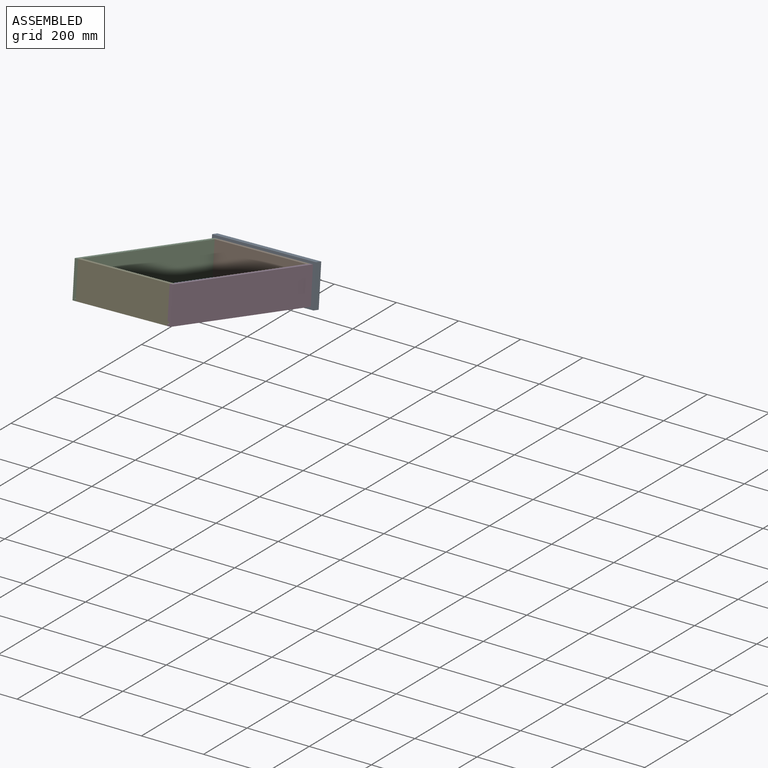
[diagram: assembled view]
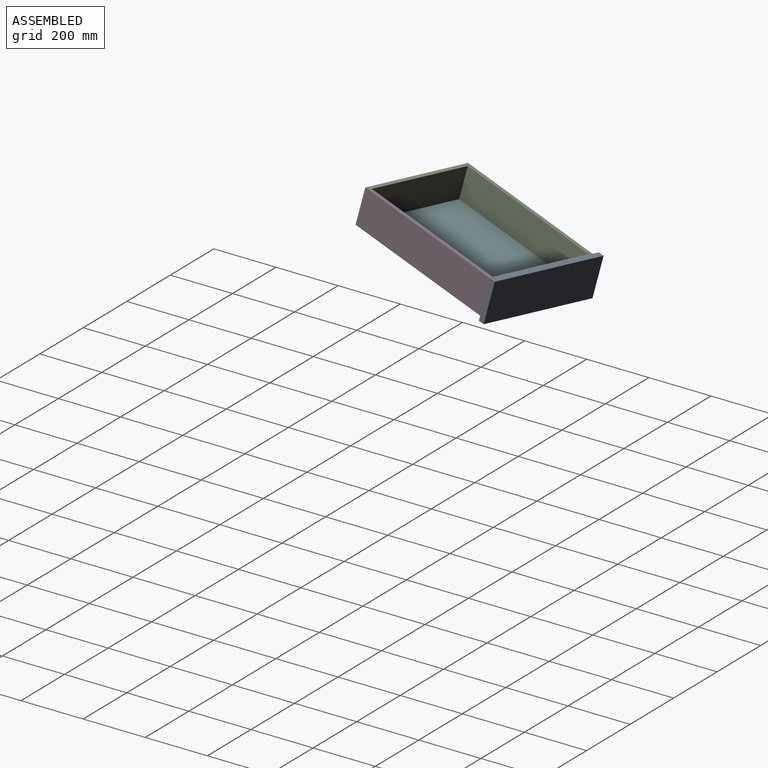
[diagram: assembled view, second angle]
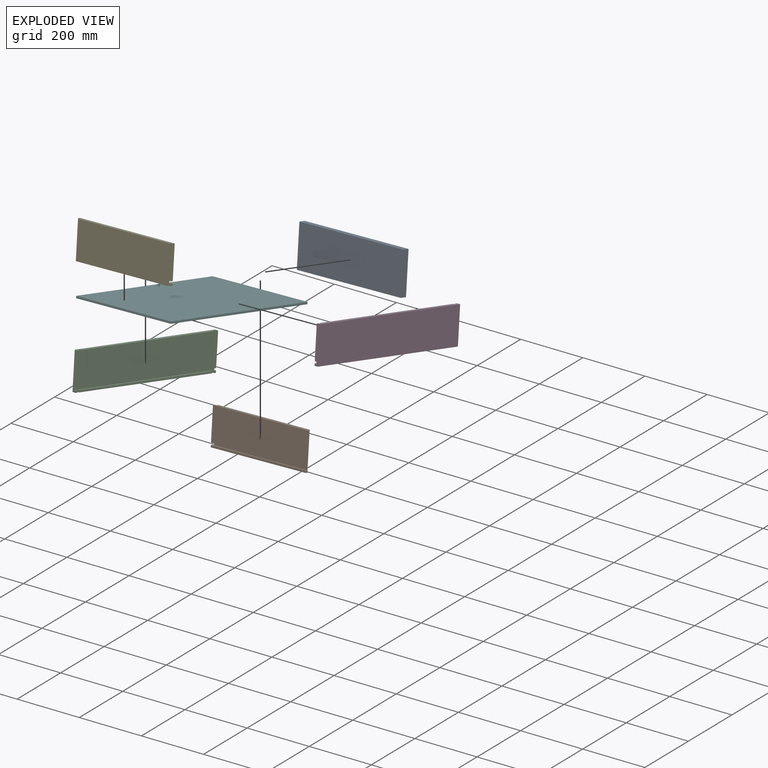
[diagram: exploded view]
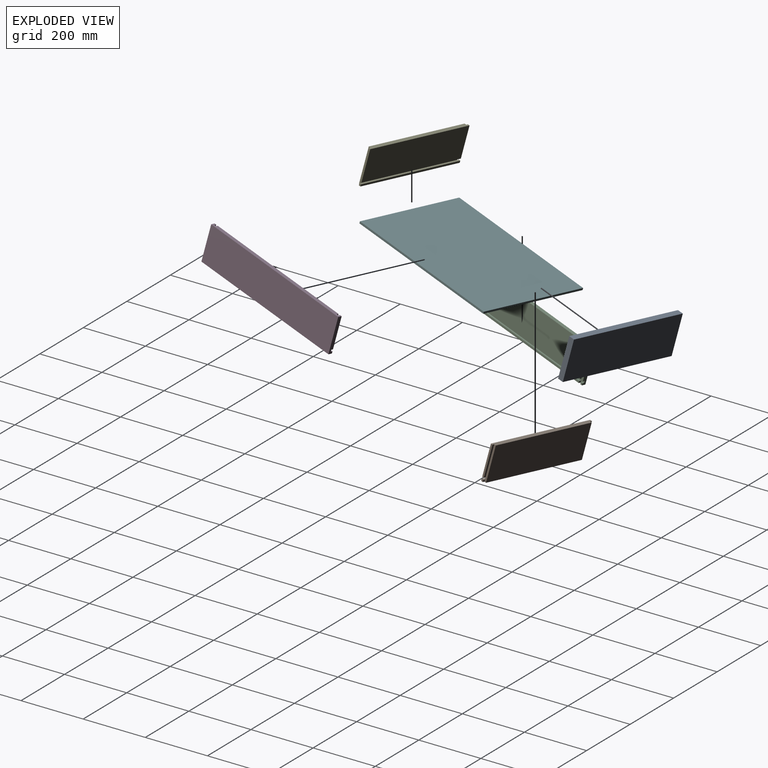
[diagram: exploded view, second angle]
ASSEMBLY  parts=6 mates=5
PART A: 6 faces, bbox 130.2x19.1x400.1 mm
  f0: plane 400.05x19.05mm, normal (-1,0,0), area 7621mm2, adj f1,f2,f3,f4
  f1: plane 130.18x19.05mm, normal (0,0,-1), area 2479.8mm2, adj f0,f2,f4,f5
  f2: plane 400.05x130.18mm, normal (0,1,0), area 52076.5mm2, adj f0,f1,f3,f5
  f3: plane 130.18x19.05mm, normal (0,0,1), area 2479.8mm2, adj f0,f2,f4,f5
  f4: plane 400.05x130.18mm, normal (0,-1,0), area 52076.5mm2, adj f0,f1,f3,f5
  f5: plane 400.05x19.05mm, normal (1,0,0), area 7621mm2, adj f1,f2,f3,f4
PART B: 18 faces, bbox 114.3x12.7x365.1 mm
  f0: plane 365.13x6.35mm, normal (0,1,0), area 2318.5mm2, adj f1,f3,f4,f6
  f1: plane 6.35x6.35mm, normal (0,0,1), area 40.3mm2, adj f0,f2,f4,f6
  f2: plane 6.35x6.35mm, normal (0,-1,0), area 40.3mm2, adj f1,f4,f5,f6
  f3: plane 6.35x6.35mm, normal (0,0,-1), area 40.3mm2, adj f0,f4,f6,f7
  f4: plane 365.13x6.35mm, normal (-1,0,0), area 2318.5mm2, adj f0,f1,f2,f3,f7,f9
  f5: plane 114.3x6.35mm, normal (0,0,1), area 725.8mm2, adj f2,f6,f8,f9,f10,f14
  f6: plane 365.13x12.7mm, normal (1,0,0), area 4556.4mm2, adj f0,f1,f2,f3,f5,f7,f8,f15
  f7: plane 6.35x6.35mm, normal (0,-1,0), area 40.3mm2, adj f3,f4,f6,f15
  f8: plane 352.43x114.3mm, normal (0,-1,0), area 40282.2mm2, adj f5,f6,f14,f15
  f9: plane 352.43x6.35mm, normal (0,1,0), area 2237.9mm2, adj f4,f5,f15,f16
  f10: plane 101.6x6.35mm, normal (0,-1,0), area 645.2mm2, adj f5,f11,f14,f16
  f11: plane 101.6x6.35mm, normal (0,0,1), area 645.2mm2, adj f10,f12,f14,f16
  f12: plane 365.13x101.6mm, normal (0,1,0), area 37096.7mm2, adj f11,f13,f14,f16
  f13: plane 101.6x6.35mm, normal (0,0,-1), area 645.2mm2, adj f12,f14,f16,f17
  f14: plane 365.13x12.7mm, normal (-1,0,0), area 4556.4mm2, adj f5,f8,f10,f11,f12,f13,f15,f17
  f15: plane 114.3x6.35mm, normal (0,0,-1), area 725.8mm2, adj f6,f7,f8,f9,f14,f17
  f16: plane 365.13x6.35mm, normal (1,0,0), area 2318.5mm2, adj f9,f10,f11,f12,f13,f17
  f17: plane 101.6x6.35mm, normal (0,-1,0), area 645.2mm2, adj f13,f14,f15,f16
PART C: 26 faces, bbox 114.3x12.7x508 mm
  f0: plane 6.35x6.35mm, normal (0,1,0), area 40.3mm2, adj f8,f9,f10,f14
  f1: plane 482.6x6.35mm, normal (0,1,0), area 3064.5mm2, adj f11,f12,f13,f14
  f2: plane 6.35x6.35mm, normal (0,1,0), area 40.3mm2, adj f14,f15,f16,f17
  f3: plane 101.6x6.35mm, normal (0,1,0), area 645.2mm2, adj f6,f7,f8,f21
  f4: plane 508x114.3mm, normal (0,-1,0), area 58064.4mm2, adj f8,f14,f17,f21
  f5: plane 101.6x6.35mm, normal (0,1,0), area 645.2mm2, adj f17,f18,f19,f21
  f6: plane 101.6x6.35mm, normal (0,0,1), area 645.2mm2, adj f3,f7,f21,f22
  f7: plane 6.35x6.35mm, normal (1,0,0), area 40.3mm2, adj f3,f6,f8,f22
  f8: plane 114.3x12.7mm, normal (0,0,-1), area 1411.3mm2, adj f0,f3,f4,f7,f9,f14,f21,f22
  f9: plane 6.35x6.35mm, normal (-1,0,0), area 40.3mm2, adj f0,f8,f10,f22
  f10: plane 6.35x6.35mm, normal (0,0,1), area 40.3mm2, adj f0,f9,f14,f22
  f11: plane 6.35x6.35mm, normal (0,0,-1), area 40.3mm2, adj f1,f12,f14,f22
  f12: plane 482.6x6.35mm, normal (-1,0,0), area 3064.5mm2, adj f1,f11,f13,f22
  f13: plane 6.35x6.35mm, normal (0,0,1), area 40.3mm2, adj f1,f12,f14,f22
  f14: plane 508x12.7mm, normal (1,0,0), area 6371mm2, adj f0,f1,f2,f4,f8,f10,f11,f13
  f15: plane 6.35x6.35mm, normal (0,0,-1), area 40.3mm2, adj f2,f14,f16,f22
  f16: plane 6.35x6.35mm, normal (-1,0,0), area 40.3mm2, adj f2,f15,f17,f22
  f17: plane 114.3x12.7mm, normal (0,0,1), area 1411.3mm2, adj f2,f4,f5,f14,f16,f18,f21,f22
  f18: plane 6.35x6.35mm, normal (1,0,0), area 40.3mm2, adj f5,f17,f19,f22
  f19: plane 101.6x6.35mm, normal (0,0,-1), area 645.2mm2, adj f5,f18,f21,f22
  f20: plane 101.6x6.35mm, normal (0,0,1), area 645.2mm2, adj f21,f22,f23,f24
  f21: plane 508x12.7mm, normal (-1,0,0), area 6371mm2, adj f3,f4,f5,f6,f8,f17,f19,f20
  f22: plane 508x114.3mm, normal (0,1,0), area 4596.8mm2, adj f6,f7,f8,f9,f10,f11,f12,f13
  f23: plane 482.6x6.35mm, normal (1,0,0), area 3064.5mm2, adj f20,f22,f24,f25
  f24: plane 482.6x101.6mm, normal (0,1,0), area 49032.2mm2, adj f20,f21,f23,f25
  f25: plane 101.6x6.35mm, normal (0,0,-1), area 645.2mm2, adj f21,f22,f23,f24
PART D: same geometry as C
PART E: same geometry as B
PART F: 6 faces, bbox 365.1x495.3x6.4 mm
  f0: plane 495.3x6.35mm, normal (-1,0,0), area 3145.2mm2, adj f1,f2,f3,f4
  f1: plane 495.3x365.13mm, normal (0,0,-1), area 180846.4mm2, adj f0,f2,f4,f5
  f2: plane 365.13x6.35mm, normal (0,1,0), area 2318.5mm2, adj f0,f1,f3,f5
  f3: plane 495.3x365.13mm, normal (0,0,1), area 180846.4mm2, adj f0,f2,f4,f5
  f4: plane 365.13x6.35mm, normal (0,-1,0), area 2318.5mm2, adj f0,f1,f3,f5
  f5: plane 495.3x6.35mm, normal (1,0,0), area 3145.2mm2, adj f1,f2,f3,f4
PLACE A rot(axis=(0.67,0,0.75),163.1deg) t=(-78.78,568.24,-91.72)mm
PLACE B rot(axis=(-0.74,0.15,0.66),179.9deg) t=(279.76,507.88,79.41)mm
PLACE C rot(axis=(0.61,0.42,-0.67),117.2deg) t=(-66.28,589.88,30.28)mm
PLACE D rot(axis=(-0.61,0.67,0.43),117.1deg) t=(165.93,35.11,173.7)mm
PLACE E rot(axis=(0,0.98,-0.22),85deg) t=(-180.11,117.11,124.57)mm fixed
PLACE F rot(axis=(-0.06,0.1,0.99),168deg) t=(182.89,16.74,68.3)mm
MATE fastened B.f15 <-> D.f2  axis (0.97,-0.19,0.13) through (286.3,496.7,-35.04)mm
MATE fastened C.f2 <-> E.f15  axis (0.97,-0.19,0.13) through (-166.73,79.14,16.65)mm
MATE fastened C.f8 <-> A.f2  axis (0.22,0.96,-0.19) through (-78.63,592.35,28.63)mm
MATE fastened D.f0 <-> E.f5  axis (-0.97,0.19,-0.13) through (175.89,10.53,62.52)mm
MATE fastened F.f5 <-> C.f22  axis (-0.97,0.19,-0.13) through (-64.43,561.83,-74.33)mm
